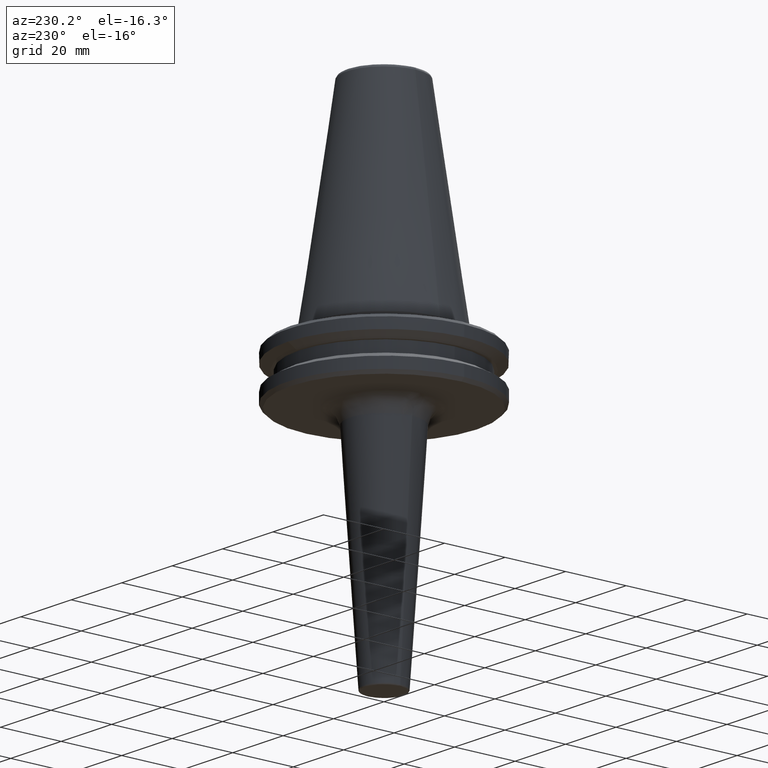
[diagram: clean part render]
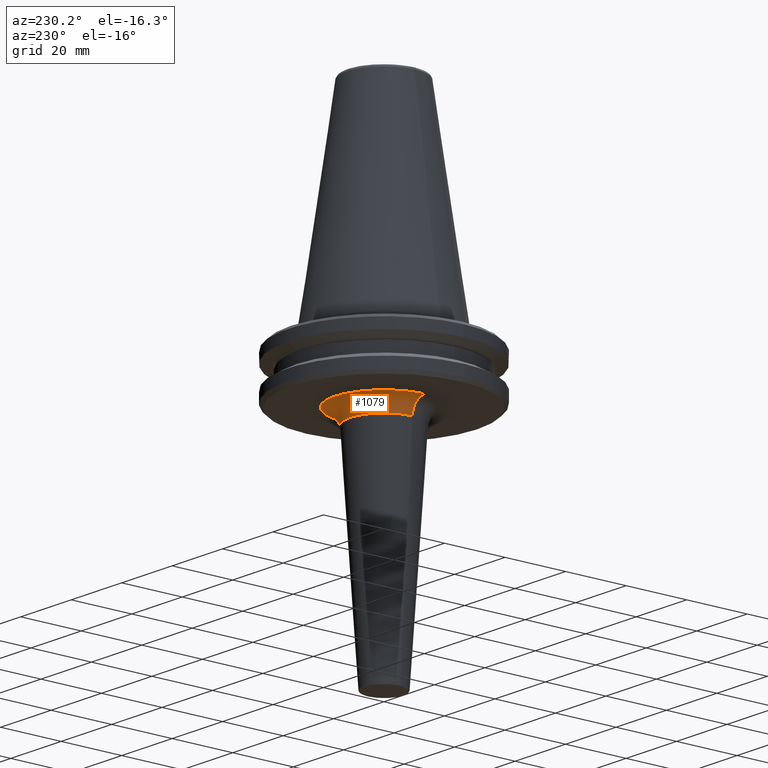
[diagram: same view with one face highlighted and labeled with its STEP entity id]
A machine part, auxiliary view. The second image highlights one B-rep face of the part: STEP entity #1079.
In plain terms, the highlighted face is a freeform B-spline surface patch.
Its self-contained STEP definition (entity closure, byte-faithful):
#2 = CARTESIAN_POINT ( 'NONE',  ( 1.971116551030571300, 16.08770573178700000, -19.10000000000000100 ) ) ;
#3 = CARTESIAN_POINT ( 'NONE',  ( 2.974150553997553500, 15.90205793444023100, -19.10000000000000100 ) ) ;
#9 = CARTESIAN_POINT ( 'NONE',  ( 3.008236973642987700, 15.89564859819049200, -19.10000000000000100 ) ) ;
#12 = CARTESIAN_POINT ( 'NONE',  ( 3.072635116647917100, 15.88332775239781300, -19.10000000000000500 ) ) ;
#17 = CARTESIAN_POINT ( 'NONE',  ( 3.169149084727929100, 15.86456066499453500, -19.10000000000000500 ) ) ;
#20 = CARTESIAN_POINT ( 'NONE',  ( -8.737999526921823800, 13.61514343514481200, -19.10000000000000500 ) ) ;
#25 = CARTESIAN_POINT ( 'NONE',  ( 3.393765618589601500, 15.81877006338711800, -19.10000000000000900 ) ) ;
#26 = CARTESIAN_POINT ( 'NONE',  ( 3.840667786346210600, 15.71918593617312600, -19.10000000000000500 ) ) ;
#31 = CARTESIAN_POINT ( 'NONE',  ( 4.725148521992487400, 15.48800598574859900, -19.10000000000000100 ) ) ;
#32 = CARTESIAN_POINT ( 'NONE',  ( 0.9891585670951685800, 16.17773303299791400, -19.10000000000000500 ) ) ;
#36 = CARTESIAN_POINT ( 'NONE',  ( 5.467291552774525200, 15.23497454939064100, -19.10000000000000900 ) ) ;
#39 = CARTESIAN_POINT ( 'NONE',  ( -16.08773818139473000, 1.970941229461560300, -19.10000000000000500 ) ) ;
#40 = CARTESIAN_POINT ( 'NONE',  ( 5.985428523495694500, 15.02982971854463800, -19.10000000000000100 ) ) ;
#41 = VERTEX_POINT ( 'NONE', #1140 ) ;
#43 = CARTESIAN_POINT ( 'NONE',  ( 6.018458502751270700, 15.01663702727699400, -19.10000000000000100 ) ) ;
#46 = CARTESIAN_POINT ( 'NONE',  ( 6.081817590824343300, 14.99109058592911300, -19.10000000000000500 ) ) ;
#48 = CARTESIAN_POINT ( 'NONE',  ( 6.176706686414919800, 14.95248451681799100, -19.10000000000000500 ) ) ;
#51 = CARTESIAN_POINT ( 'NONE',  ( 6.397067820493013800, 14.86039883926698300, -19.10000000000000500 ) ) ;
#53 = CARTESIAN_POINT ( 'NONE',  ( 6.833603066116205000, 14.66820808566471300, -19.10000000000000500 ) ) ;
#56 = CARTESIAN_POINT ( 'NONE',  ( 7.689925467230589900, 14.25174898445914800, -19.10000000000000900 ) ) ;
#59 = CARTESIAN_POINT ( 'NONE',  ( -8.040560257298219300, 14.04292798415468700, -19.10000000000000100 ) ) ;
#61 = CARTESIAN_POINT ( 'NONE',  ( -15.23497454939380100, 5.467291552766536900, -19.10000000000000500 ) ) ;
#62 = CARTESIAN_POINT ( 'NONE',  ( 8.395205085102356100, 13.83979387942406400, -19.10000000000000500 ) ) ;
#64 = CARTESIAN_POINT ( 'NONE',  ( 8.909809292678756900, 13.50333247007544900, -19.10000000000000500 ) ) ;
#65 = CARTESIAN_POINT ( 'NONE',  ( 8.969230403243500400, 13.46394756089499700, -19.10000000000000500 ) ) ;
#72 = CARTESIAN_POINT ( 'NONE',  ( 9.084976501324396400, 13.38613433630070100, -19.10000000000000500 ) ) ;
#75 = CARTESIAN_POINT ( 'NONE',  ( 9.257742390675620200, 13.26837078503416300, -19.09999999999999800 ) ) ;
#76 = CARTESIAN_POINT ( 'NONE',  ( 9.654889994771005800, 12.98628316478650600, -19.10000000000000500 ) ) ;
#80 = CARTESIAN_POINT ( 'NONE',  ( 10.42529398539852500, 12.39288392178829100, -19.10000000000000500 ) ) ;
#82 = CARTESIAN_POINT ( 'NONE',  ( 11.04468389011369400, 11.83415770921344100, -19.10000000000000100 ) ) ;
#84 = CARTESIAN_POINT ( 'NONE',  ( 12.22885520225660200, 10.64990756405711100, -19.10000000000000500 ) ) ;
#88 = CARTESIAN_POINT ( 'NONE',  ( 12.92979661513234300, 9.787143716516389700, -19.10000000000000100 ) ) ;
#91 = CARTESIAN_POINT ( 'NONE',  ( 13.57889959961305100, 8.794224005572246500, -19.10000000000000900 ) ) ;
#92 = CARTESIAN_POINT ( 'NONE',  ( -6.463105286439981600, 14.84074172916447600, -19.10000000000001200 ) ) ;
#94 = CARTESIAN_POINT ( 'NONE',  ( 13.61514343514571700, 8.737999526919411500, -19.10000000000000900 ) ) ;
#96 = CARTESIAN_POINT ( 'NONE',  ( 13.68842039294202500, 8.622777181132301300, -19.10000000000000900 ) ) ;
#97 = CARTESIAN_POINT ( 'NONE',  ( 13.79718642340126100, 8.449352837137608300, -19.10000000000000900 ) ) ;
#99 = CARTESIAN_POINT ( 'NONE',  ( 14.04292798415957900, 8.040560257285116900, -19.10000000000000500 ) ) ;
#101 = CARTESIAN_POINT ( 'NONE',  ( 14.50222773108998600, 7.206431988787282500, -19.10000000000000500 ) ) ;
#104 = CARTESIAN_POINT ( 'NONE',  ( 14.84074172916819700, 6.463105286429987800, -19.10000000000000500 ) ) ;
#105 = CARTESIAN_POINT ( 'NONE',  ( 15.05446926980854800, 5.923190165142228700, -19.10000000000000500 ) ) ;
#106 = CARTESIAN_POINT ( 'NONE',  ( 15.06594842473603400, 5.893923458087432900, -19.10000000000000500 ) ) ;
#109 = CARTESIAN_POINT ( 'NONE',  ( 15.08971340016873900, 5.832815762092592700, -19.10000000000000900 ) ) ;
#113 = CARTESIAN_POINT ( 'NONE',  ( 15.12507447555004300, 5.741072942177204700, -19.10000000000000900 ) ) ;
#115 = CARTESIAN_POINT ( 'NONE',  ( 15.20557893706553900, 5.526437430912799300, -19.10000000000000100 ) ) ;
#118 = CARTESIAN_POINT ( 'NONE',  ( 15.35856900259964600, 5.094890682536595600, -19.10000000000000900 ) ) ;
#119 = CARTESIAN_POINT ( 'NONE',  ( 15.63247370368026200, 4.222694282394644300, -19.10000000000000500 ) ) ;
#123 = CARTESIAN_POINT ( 'NONE',  ( 15.81226271034205900, 3.459492390748053000, -19.09999999999999800 ) ) ;
#125 = CARTESIAN_POINT ( 'NONE',  ( -2.517484680619183300, 15.98154654005900700, -19.10000000000000500 ) ) ;
#126 = CARTESIAN_POINT ( 'NONE',  ( 15.91364743245185100, 2.911522033802087500, -19.10000000000000900 ) ) ;
#133 = CARTESIAN_POINT ( 'NONE',  ( 15.91884911776305200, 2.882924573215829500, -19.10000000000000900 ) ) ;
#134 = CARTESIAN_POINT ( 'NONE',  ( 15.92975085846598500, 2.822069884585610500, -19.10000000000000900 ) ) ;
#136 = CARTESIAN_POINT ( 'NONE',  ( 15.94583971772917500, 2.730764174004906200, -19.10000000000000100 ) ) ;
#138 = CARTESIAN_POINT ( 'NONE',  ( 15.98153412680489500, 2.517551772535636400, -19.10000000000000100 ) ) ;
#141 = CARTESIAN_POINT ( 'NONE',  ( 16.04553789480275200, 2.090463995806593800, -19.10000000000000900 ) ) ;
#142 = CARTESIAN_POINT ( 'NONE',  ( 16.14400523018405000, 1.233636547186491200, -19.10000000000000500 ) ) ;
#148 = CARTESIAN_POINT ( 'NONE',  ( 16.17776545945763900, 0.4946669138058040800, -19.10000000000000900 ) ) ;
#149 = CARTESIAN_POINT ( 'NONE',  ( 16.17776545945763500, 0.0000000000000000000, -19.10000000000000900 ) ) ;
#153 = DIRECTION ( 'NONE',  ( -1.000000000000000000, 1.224646799147353500E-016, 0.0000000000000000000 ) ) ;
#156 = CARTESIAN_POINT ( 'NONE',  ( -12.39288392180904300, 10.42529398538092900, -19.10000000000000100 ) ) ;
#162 = DIRECTION ( 'NONE',  ( -1.224646799147353200E-016, -1.000000000000000000, 0.0000000000000000000 ) ) ;
#163 = CARTESIAN_POINT ( 'NONE',  ( -16.17776545945763500, 1.981204868728140300E-015, -24.10000000000000900 ) ) ;
#200 = DIRECTION ( 'NONE',  ( 1.000000000000000000, 0.0000000000000000000, 0.0000000000000000000 ) ) ;
#204 = DIRECTION ( 'NONE',  ( 0.0000000000000000000, 1.000000000000000000, 0.0000000000000000000 ) ) ;
#206 = CARTESIAN_POINT ( 'NONE',  ( 16.17776545945763500, 0.0000000000000000000, -24.10000000000000900 ) ) ;
#240 = CARTESIAN_POINT ( 'NONE',  ( -16.17776545945763500, 1.981204868728140300E-015, -19.10000000000000900 ) ) ;
#261 = CIRCLE ( 'NONE', #1080, 4.999999999999997300 ) ;
#273 = CARTESIAN_POINT ( 'NONE',  ( -3.459492390746776700, 15.81226271034234400, -19.10000000000000500 ) ) ;
#283 = CARTESIAN_POINT ( 'NONE',  ( -8.794224005571855700, 13.57889959961366200, -19.10000000000000900 ) ) ;
#294 = CARTESIAN_POINT ( 'NONE',  ( -15.01663702727796900, 6.018458502748801600, -19.10000000000000100 ) ) ;
#324 = CARTESIAN_POINT ( 'NONE',  ( -13.38613433630616900, 9.084976501319761900, -19.10000000000000500 ) ) ;
#360 = VERTEX_POINT ( 'NONE', #932 ) ;
#367 = CARTESIAN_POINT ( 'NONE',  ( -15.48800598575412800, 4.725148521978519900, -19.10000000000000500 ) ) ;
#383 = CARTESIAN_POINT ( 'NONE',  ( -15.86456066499583200, 3.169149084724659700, -19.10000000000000500 ) ) ;
#414 = CARTESIAN_POINT ( 'NONE',  ( -14.25174898447302700, 7.689925467195524600, -19.10000000000000500 ) ) ;
#442 = CARTESIAN_POINT ( 'NONE',  ( -5.526437430911822300, 15.20557893706576300, -19.10000000000000100 ) ) ;
#467 = CARTESIAN_POINT ( 'NONE',  ( -15.90205692038998800, 2.974156032796588800, -19.10000000000000100 ) ) ;
#474 = AXIS2_PLACEMENT_3D ( 'NONE', #1101, #1091, #1100 ) ;
#475 = CARTESIAN_POINT ( 'NONE',  ( -2.822048832785294600, 15.92975475344112900, -19.10000000000000500 ) ) ;
#491 = CARTESIAN_POINT ( 'NONE',  ( -2.911522033802166100, 15.91364743245183400, -19.10000000000000500 ) ) ;
#503 = CARTESIAN_POINT ( 'NONE',  ( -15.89564859819089000, 3.008236973642010700, -19.10000000000000500 ) ) ;
#508 = CARTESIAN_POINT ( 'NONE',  ( -16.17776545945763500, 1.981204868728140300E-015, -19.10000000000001200 ) ) ;
#510 = CARTESIAN_POINT ( 'NONE',  ( -16.17776545945763200, 32.35553091891526400, -19.10000000000001200 ) ) ;
#512 = CARTESIAN_POINT ( 'NONE',  ( 16.17776545945763500, 32.35553091891526400, -19.10000000000001200 ) ) ;
#513 = CARTESIAN_POINT ( 'NONE',  ( 16.17776545945763500, 0.0000000000000000000, -19.10000000000001200 ) ) ;
#518 = CARTESIAN_POINT ( 'NONE',  ( -13.40115014319879400, 1.641167562776150100E-015, -19.10000000000001600 ) ) ;
#520 = CARTESIAN_POINT ( 'NONE',  ( -13.40115014319879100, 26.80230028639758200, -19.10000000000001600 ) ) ;
#523 = CARTESIAN_POINT ( 'NONE',  ( -13.46394756089786600, 8.969230403241059700, -19.10000000000000100 ) ) ;
#525 = CARTESIAN_POINT ( 'NONE',  ( -15.88332775239857700, 3.072635116646004900, -19.10000000000000500 ) ) ;
#529 = CARTESIAN_POINT ( 'NONE',  ( -14.99109058593101600, 6.081817590819528400, -19.10000000000000500 ) ) ;
#532 = CARTESIAN_POINT ( 'NONE',  ( 13.40115014319879600, 26.80230028639758200, -19.10000000000001600 ) ) ;
#534 = CARTESIAN_POINT ( 'NONE',  ( 13.40115014319879400, 0.0000000000000000000, -19.10000000000001600 ) ) ;
#535 = CARTESIAN_POINT ( 'NONE',  ( -11.37353737361728500, 1.392856613958320700E-015, -20.99693939574073200 ) ) ;
#540 = CARTESIAN_POINT ( 'NONE',  ( -11.37353737361728400, 22.74707474723457800, -20.99693939574073200 ) ) ;
#543 = CARTESIAN_POINT ( 'NONE',  ( 11.37353737361729100, 22.74707474723457800, -20.99693939574073200 ) ) ;
#544 = CARTESIAN_POINT ( 'NONE',  ( 11.37353737361728500, 0.0000000000000000000, -20.99693939574073200 ) ) ;
#547 = ORIENTED_EDGE ( 'NONE', *, *, #1334, .F. ) ;
#548 = CARTESIAN_POINT ( 'NONE',  ( -11.18883967017459100, 1.370237668825224200E-015, -23.76740494738113800 ) ) ;
#550 = CARTESIAN_POINT ( 'NONE',  ( -11.18883967017458900, 22.37767934034918200, -23.76740494738113400 ) ) ;
#553 = CARTESIAN_POINT ( 'NONE',  ( -7.206431988804767200, 14.50222773108346900, -19.10000000000000500 ) ) ;
#560 = CARTESIAN_POINT ( 'NONE',  ( 11.18883967017459100, 0.0000000000000000000, -23.76740494738113800 ) ) ;
#563 =( BOUNDED_SURFACE ( )  B_SPLINE_SURFACE ( 3, 3, ( 
 ( #560, #573, #550, #548 ),
 ( #544, #543, #540, #535 ),
 ( #534, #532, #520, #518 ),
 ( #513, #512, #510, #508 ) ),
 .UNSPECIFIED., .F., .F., .F. ) 
 B_SPLINE_SURFACE_WITH_KNOTS ( ( 4, 4 ),
 ( 4, 4 ),
 ( 0.0000000000000000000, 1.000000000000000000 ),
 ( 0.0000000000000000000, 1.000000000000000000 ),
 .UNSPECIFIED. ) 
 GEOMETRIC_REPRESENTATION_ITEM ( )  RATIONAL_B_SPLINE_SURFACE ( (
 ( 1.000000000000000000, 0.3333333333333334300, 0.3333333333333334300, 1.000000000000000000),
 ( 0.8201641299771351700, 0.2733880433257118200, 0.2733880433257118200, 0.8201641299771351700),
 ( 0.8201641299771351700, 0.2733880433257118200, 0.2733880433257118200, 0.8201641299771351700),
 ( 1.000000000000000000, 0.3333333333333334300, 0.3333333333333334300, 1.000000000000000000) ) ) 
 REPRESENTATION_ITEM ( '' )  SURFACE ( )  );
#573 = CARTESIAN_POINT ( 'NONE',  ( 11.18883967017459100, 22.37767934034918200, -23.76740494738113400 ) ) ;
#586 = CARTESIAN_POINT ( 'NONE',  ( -15.71918593617725800, 3.840667786335744300, -19.10000000000000100 ) ) ;
#616 = CARTESIAN_POINT ( 'NONE',  ( -8.622777181136903800, 13.68842039294030500, -19.10000000000000500 ) ) ;
#620 = CIRCLE ( 'NONE', #474, 11.18883967017459100 ) ;
#651 = ORIENTED_EDGE ( 'NONE', *, *, #1305, .T. ) ;
#668 = CARTESIAN_POINT ( 'NONE',  ( -11.18883967018224400, 1.370237668826161100E-015, -23.76740494738113800 ) ) ;
#686 = ORIENTED_EDGE ( 'NONE', *, *, #1282, .F. ) ;
#697 = EDGE_CURVE ( 'NONE', #1002, #360, #620, .T. ) ;
#700 = CARTESIAN_POINT ( 'NONE',  ( -10.64990756403340400, 12.22885520227671600, -19.10000000000000900 ) ) ;
#719 = CARTESIAN_POINT ( 'NONE',  ( -13.83979387943199400, 8.395205085082318800, -19.10000000000000500 ) ) ;
#738 = CARTESIAN_POINT ( 'NONE',  ( -14.66820808567512400, 6.833603066089902500, -19.10000000000000900 ) ) ;
#742 = CARTESIAN_POINT ( 'NONE',  ( -2.882913790586399300, 15.91885111275032500, -19.10000000000000100 ) ) ;
#777 = CARTESIAN_POINT ( 'NONE',  ( -8.449352837145246700, 13.79718642339840100, -19.10000000000000100 ) ) ;
#806 = CARTESIAN_POINT ( 'NONE',  ( -4.222694282392415800, 15.63247370368075000, -19.10000000000000900 ) ) ;
#826 = CARTESIAN_POINT ( 'NONE',  ( -16.17776545945763500, 1.981204868728140300E-015, -19.10000000000000900 ) ) ;
#886 = CARTESIAN_POINT ( 'NONE',  ( -16.17776545945763900, 0.9896893680579755800, -19.10000000000000100 ) ) ;
#898 = CARTESIAN_POINT ( 'NONE',  ( -11.83415770922529500, 11.04468389010363600, -19.10000000000000900 ) ) ;
#915 = CARTESIAN_POINT ( 'NONE',  ( -13.26837078504323300, 9.257742390667917900, -19.09999999999999400 ) ) ;
#926 = CARTESIAN_POINT ( 'NONE',  ( -14.86039883927305800, 6.397067820477669600, -19.10000000000000500 ) ) ;
#932 = CARTESIAN_POINT ( 'NONE',  ( 11.18883967018224400, 0.0000000000000000000, -23.76740494738113800 ) ) ;
#937 = CARTESIAN_POINT ( 'NONE',  ( -12.98628316480206900, 9.654889994757805700, -19.10000000000000900 ) ) ;
#952 = CARTESIAN_POINT ( 'NONE',  ( -5.893923458087277500, 15.06594842473606700, -19.10000000000000100 ) ) ;
#970 = CARTESIAN_POINT ( 'NONE',  ( -2.730728231906806700, 15.94584636768674100, -19.10000000000000900 ) ) ;
#986 = B_SPLINE_CURVE_WITH_KNOTS ( 'NONE', 3,
 ( #149, #148, #142, #141, #138, #136, #134, #133, #126, #123, #119, #118, #115, #113, #109, #106, #105, #104, #101, #99, #97, #96, #94, #91, #88, #84, #82, #80, #76, #75, #72, #65, #64, #62, #56, #53, #51, #48, #46, #43, #40, #36, #31, #26, #25, #17, #12, #9, #3, #2, #32, #1301, #1062, #1112, #125, #970, #475, #742, #491, #273, #806, #1337, #442, #1281, #1081, #952, #1278, #92, #553, #59, #777, #616, #20, #283, #1020, #700, #898, #156, #937, #915, #324, #523, #1280, #719, #414, #738, #926, #1328, #529, #294, #1070, #61, #367, #586, #1433, #383, #525, #503, #467, #39, #886, #240 ),
 .UNSPECIFIED., .F., .F.,
 ( 4, 1, 1, 1, 1, 2, 2, 1, 1, 1, 1, 2, 2, 1, 1, 1, 2, 2, 2, 1, 1, 1, 2, 2, 1, 1, 1, 1, 2, 2, 1, 1, 1, 1, 2, 2, 2, 1, 1, 1, 1, 2, 2, 1, 1, 1, 1, 2, 2, 1, 1, 1, 2, 2, 2, 1, 1, 1, 2, 2, 1, 1, 1, 1, 2, 2, 1, 1, 1, 1, 2, 2, 4 ),
 ( 0.0000000000000000000, 0.03124999999999846700, 0.04687499999999771000, 0.05468749999999734900, 0.05859374999999718300, 0.06054687499999710000, 0.06249999999999701600, 0.09374999999999600300, 0.1093749999999954900, 0.1171874999999952500, 0.1210937499999951700, 0.1230468749999951300, 0.1249999999999950900, 0.1562499999999945000, 0.1718749999999941700, 0.1796874999999940900, 0.1835937499999940300, 0.1874999999999939800, 0.2499999999999933900, 0.2812499999999930100, 0.2968749999999929500, 0.3046874999999929500, 0.3085937499999930100, 0.3124999999999931200, 0.3437499999999933400, 0.3593749999999934500, 0.3671874999999935100, 0.3710937499999935600, 0.3730468749999935600, 0.3749999999999935600, 0.4062499999999942300, 0.4218749999999945600, 0.4296874999999947300, 0.4335937499999948400, 0.4355468749999948400, 0.4374999999999948400, 0.4999999999999958900, 0.5312499999999963400, 0.5468749999999965600, 0.5546874999999966700, 0.5585937499999966700, 0.5605468749999966700, 0.5624999999999966700, 0.5937499999999966700, 0.6093749999999965600, 0.6171874999999964500, 0.6210937499999963400, 0.6230468749999964500, 0.6249999999999964500, 0.6562499999999966700, 0.6718749999999967800, 0.6796874999999968900, 0.6835937499999968900, 0.6874999999999968900, 0.7499999999999976700, 0.7812499999999981100, 0.7968749999999982200, 0.8046874999999982200, 0.8085937499999983300, 0.8124999999999983300, 0.8437499999999981100, 0.8593749999999980000, 0.8671874999999980000, 0.8710937499999980000, 0.8730468749999980000, 0.8749999999999980000, 0.9062499999999983300, 0.9218749999999985600, 0.9296874999999985600, 0.9335937499999985600, 0.9355468749999985600, 0.9374999999999986700, 1.000000000000000000 ),
 .UNSPECIFIED. ) ;
#1002 = VERTEX_POINT ( 'NONE', #668 ) ;
#1020 = CARTESIAN_POINT ( 'NONE',  ( -9.787143716522550100, 12.92979661512259200, -19.10000000000001200 ) ) ;
#1024 = EDGE_LOOP ( 'NONE', ( #1244, #651, #547, #686 ) ) ;
#1062 = CARTESIAN_POINT ( 'NONE',  ( -1.233483194234600300, 16.14403360333629700, -19.10000000000000500 ) ) ;
#1070 = CARTESIAN_POINT ( 'NONE',  ( -15.02982971854444600, 5.985428523496196400, -19.10000000000000500 ) ) ;
#1079 = ADVANCED_FACE ( 'NONE', ( #1233 ), #563, .F. ) ;
#1080 = AXIS2_PLACEMENT_3D ( 'NONE', #206, #204, #200 ) ;
#1081 = CARTESIAN_POINT ( 'NONE',  ( -5.832815762092285400, 15.08971340016880600, -19.10000000000000900 ) ) ;
#1091 = DIRECTION ( 'NONE',  ( -0.0000000000000000000, -0.0000000000000000000, -1.000000000000000000 ) ) ;
#1100 = DIRECTION ( 'NONE',  ( 1.000000000000000000, 0.0000000000000000000, 0.0000000000000000000 ) ) ;
#1101 = CARTESIAN_POINT ( 'NONE',  ( 0.0000000000000000000, 0.0000000000000000000, -23.76740494738113800 ) ) ;
#1112 = CARTESIAN_POINT ( 'NONE',  ( -2.090348981092675600, 16.04555917466693800, -19.10000000000000500 ) ) ;
#1140 = CARTESIAN_POINT ( 'NONE',  ( 16.17776545945763500, 0.0000000000000000000, -19.10000000000000900 ) ) ;
#1216 = AXIS2_PLACEMENT_3D ( 'NONE', #163, #162, #153 ) ;
#1233 = FACE_OUTER_BOUND ( 'NONE', #1024, .T. ) ;
#1244 = ORIENTED_EDGE ( 'NONE', *, *, #697, .F. ) ;
#1278 = CARTESIAN_POINT ( 'NONE',  ( -5.923190165141603500, 15.05446926980877900, -19.10000000000000500 ) ) ;
#1280 = CARTESIAN_POINT ( 'NONE',  ( -13.50333247007445400, 8.909809292681259800, -19.10000000000000100 ) ) ;
#1281 = CARTESIAN_POINT ( 'NONE',  ( -5.741072942176685100, 15.12507447555016400, -19.10000000000000900 ) ) ;
#1282 = EDGE_CURVE ( 'NONE', #360, #41, #261, .T. ) ;
#1301 = CARTESIAN_POINT ( 'NONE',  ( -0.4945792835475791800, 16.17778167268749500, -19.10000000000000100 ) ) ;
#1305 = EDGE_CURVE ( 'NONE', #1002, #1405, #1443, .T. ) ;
#1328 = CARTESIAN_POINT ( 'NONE',  ( -14.95248451682123800, 6.176706686406697100, -19.10000000000000100 ) ) ;
#1334 = EDGE_CURVE ( 'NONE', #41, #1405, #986, .T. ) ;
#1337 = CARTESIAN_POINT ( 'NONE',  ( -5.094890682534921400, 15.35856900260001200, -19.10000000000000500 ) ) ;
#1405 = VERTEX_POINT ( 'NONE', #826 ) ;
#1433 = CARTESIAN_POINT ( 'NONE',  ( -15.81877006338952900, 3.393765618583498300, -19.10000000000000500 ) ) ;
#1443 = CIRCLE ( 'NONE', #1216, 4.999999999999997300 ) ;